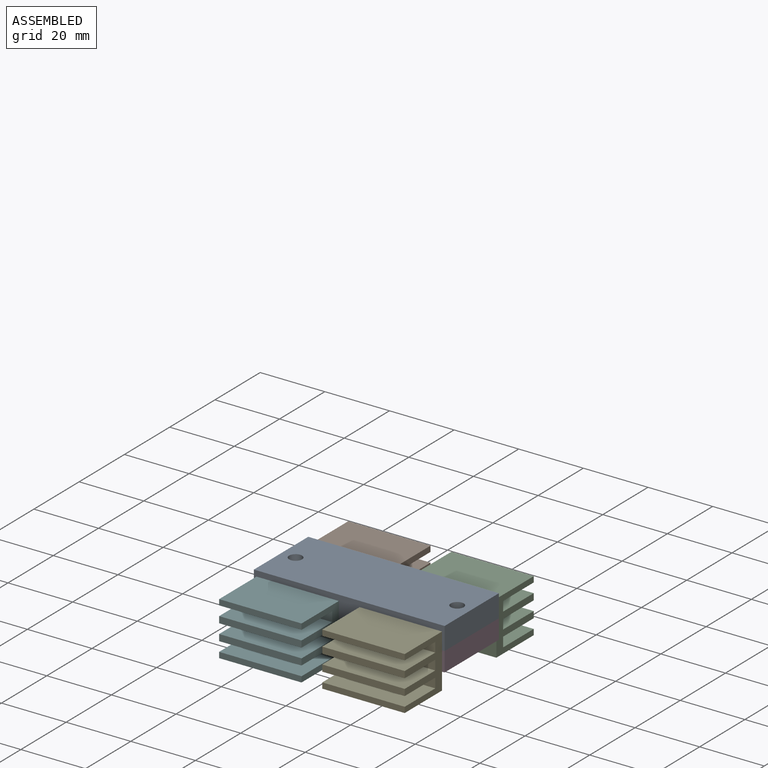
[diagram: assembled view]
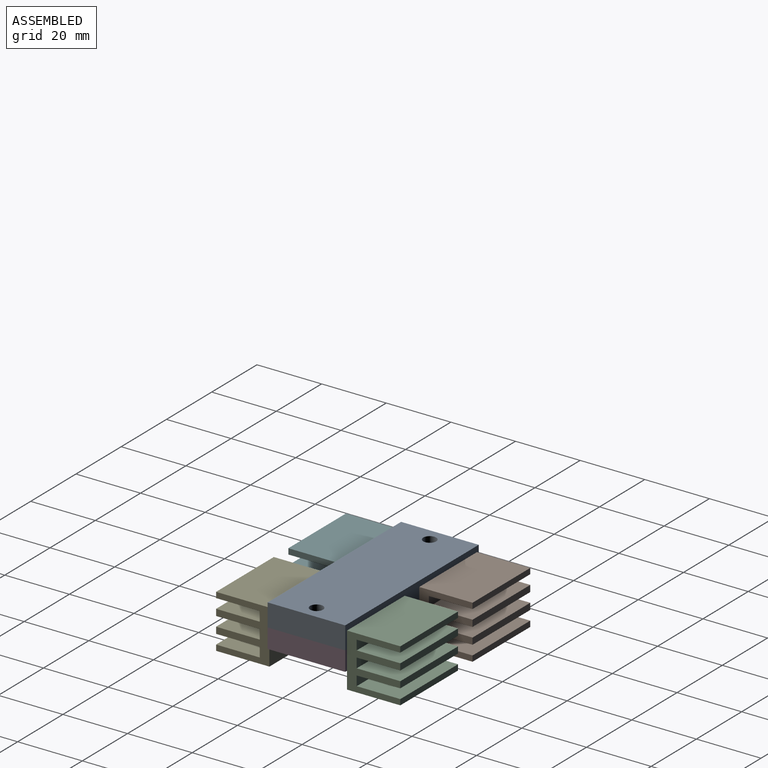
[diagram: assembled view, second angle]
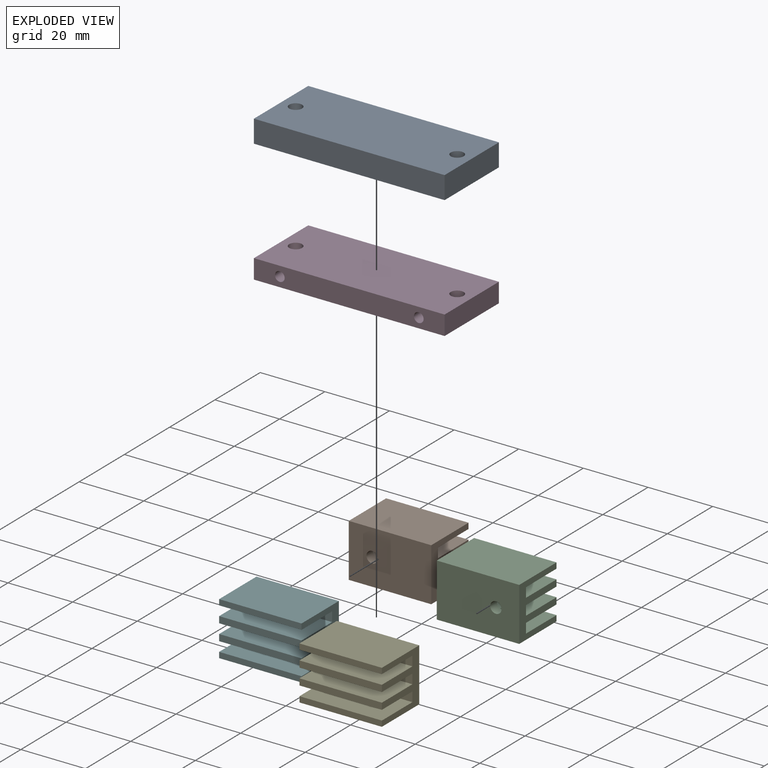
[diagram: exploded view]
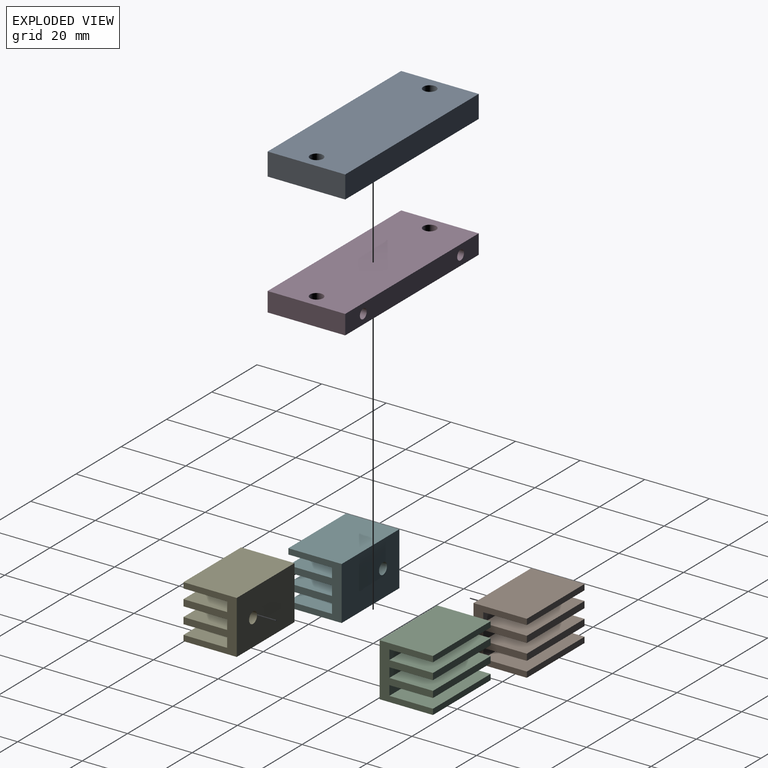
[diagram: exploded view, second angle]
ASSEMBLY  parts=6 mates=5
PART A: 8 faces, bbox 59x24x7 mm
  f0: plane 24x7mm, normal (1,0,0), area 168mm2, adj f1,f3,f4,f5
  f1: plane 59x7mm, normal (0,1,0), area 413mm2, adj f0,f2,f4,f5
  f2: plane 24x7mm, normal (-1,0,0), area 168mm2, adj f1,f3,f4,f5
  f3: plane 59x7mm, normal (0,-1,0), area 413mm2, adj f0,f2,f4,f5
  f4: plane 59x24mm, normal (0,0,1), area 1390.9mm2, adj f0,f1,f2,f3,f6,f7
  f5: plane 59x24mm, normal (0,0,-1), area 1390.9mm2, adj f0,f1,f2,f3,f6,f7
  f6: cylinder r=2mm len=7mm, axis (0,0,1), area 88mm2, adj f4,f5
  f7: cylinder r=2mm len=7mm, axis (0,0,1), area 88mm2, adj f4,f5
PART B: 22 faces, bbox 16.5x25.5x16.5 mm
  f0: plane 6.31x3mm, normal (0,0,1), area 17.1mm2, adj f4,f11,f12,f19
  f1: plane 25.5x2mm, normal (0,0,1), area 51mm2, adj f4,f5,f12,f17
  f2: plane 25.5x1.75mm, normal (0,0,1), area 44.6mm2, adj f4,f5,f6,f15
  f3: plane 25.5x2mm, normal (0,0,1), area 51mm2, adj f4,f5,f11,f14
  f4: plane 16.5x16.5mm, normal (0,1,0), area 150.8mm2, adj f0,f1,f2,f3,f6,f7,f8,f9
  f5: plane 16.5x16.5mm, normal (0,-1,0), area 150.8mm2, adj f1,f2,f3,f6,f7,f8,f9,f10
  f6: plane 25.5x16.5mm, normal (1,0,0), area 420.8mm2, adj f2,f4,f5,f9
  f7: plane 25.5x16.5mm, normal (-1,0,0), area 420.8mm2, adj f4,f5,f8,f9
  f8: plane 25.5x1.75mm, normal (0,0,1), area 44.6mm2, adj f4,f5,f7,f18
  f9: plane 25.5x16.5mm, normal (0,0,-1), area 411.1mm2, adj f4,f5,f6,f7,f19
  f10: plane 17.39x3mm, normal (0,0,1), area 50.4mm2, adj f5,f11,f12,f19
  f11: plane 25.5x13.5mm, normal (-1,0,0), area 344.2mm2, adj f0,f3,f4,f5,f10,f21
  f12: plane 25.5x13.5mm, normal (1,0,0), area 344.2mm2, adj f0,f1,f4,f5,f10,f20
  f13: plane 25.5x3mm, normal (0,0,1), area 76.5mm2, adj f4,f5,f14,f15
  f14: plane 25.5x13.5mm, normal (1,0,0), area 344.2mm2, adj f3,f4,f5,f13
  f15: plane 25.5x13.5mm, normal (-1,0,0), area 344.2mm2, adj f2,f4,f5,f13
  f16: plane 25.5x3mm, normal (0,0,1), area 76.5mm2, adj f4,f5,f17,f18
  f17: plane 25.5x13.5mm, normal (-1,0,0), area 344.2mm2, adj f1,f4,f5,f16
  f18: plane 25.5x13.5mm, normal (1,0,0), area 344.2mm2, adj f4,f5,f8,f16
  f19: cylinder r=1.75mm len=3.5mm, axis (0,0,1), area 33mm2, adj f0,f9,f10,f20,f21
  f20: plane 1.8x0.25mm, normal (0,0,-1), area 0.3mm2, adj f12,f19
  f21: plane 1.8x0.25mm, normal (0,0,-1), area 0.3mm2, adj f11,f19
PART C: same geometry as B
PART D: 16 faces, bbox 59x24x6 mm
  f0: plane 59x6mm, normal (0,1,0), area 339.9mm2, adj f2,f3,f4,f5,f12,f14
  f1: plane 59x6mm, normal (0,-1,0), area 339.9mm2, adj f2,f3,f4,f5,f8,f10
  f2: plane 24x6mm, normal (1,0,0), area 144mm2, adj f0,f1,f4,f5
  f3: plane 24x6mm, normal (-1,0,0), area 144mm2, adj f0,f1,f4,f5
  f4: plane 59x24mm, normal (0,0,1), area 1390.9mm2, adj f0,f1,f2,f3,f6,f7
  f5: plane 59x24mm, normal (0,0,-1), area 1390.9mm2, adj f0,f1,f2,f3,f6,f7
  f6: cylinder r=2mm len=6mm, axis (0,0,1), area 75.4mm2, adj f4,f5
  f7: cylinder r=2mm len=6mm, axis (0,0,1), area 75.4mm2, adj f4,f5
  f8: cylinder r=1.5mm len=5mm, axis (0,-1,0), area 47.1mm2, adj f1,f9
  f9: plane 3x3mm, normal (0,-1,0), area 7.1mm2, adj f8
  f10: cylinder r=1.5mm len=5mm, axis (0,-1,0), area 47.1mm2, adj f1,f11
  f11: plane 3x3mm, normal (0,-1,0), area 7.1mm2, adj f10
  f12: cylinder r=1.5mm len=5mm, axis (0,1,0), area 47.1mm2, adj f0,f13
  f13: plane 3x3mm, normal (0,1,0), area 7.1mm2, adj f12
  f14: cylinder r=1.5mm len=5mm, axis (0,1,0), area 47.1mm2, adj f0,f15
  f15: plane 3x3mm, normal (0,1,0), area 7.1mm2, adj f14
PART E: same geometry as B
PART F: same geometry as B
PLACE A t=(0,0,6.5)mm
PLACE B rot(axis=(-0.58,0.58,0.58),120deg) t=(-15.96,12,0)mm
PLACE C rot(axis=(-0.58,-0.58,-0.58),120deg) t=(15.96,12,0)mm
PLACE D at identity fixed
PLACE E rot(axis=(0.58,0.58,-0.58),120deg) t=(15.96,-12,0)mm
PLACE F rot(axis=(0.58,-0.58,0.58),120deg) t=(-15.96,-12,0)mm
MATE fastened A.f5 <-> D.f4  axis (0,0,-1) through (0,0,3)mm
MATE fastened D.f8 <-> C.f19  axis (0,1,0) through (21.5,12,0)mm
MATE fastened D.f8 <-> E.f19  axis (0,-1,0) through (21.5,-12,0)mm
MATE fastened D.f10 <-> B.f19  axis (0,1,0) through (-21.5,12,0)mm
MATE fastened D.f10 <-> F.f19  axis (0,-1,0) through (-21.5,-12,0)mm
